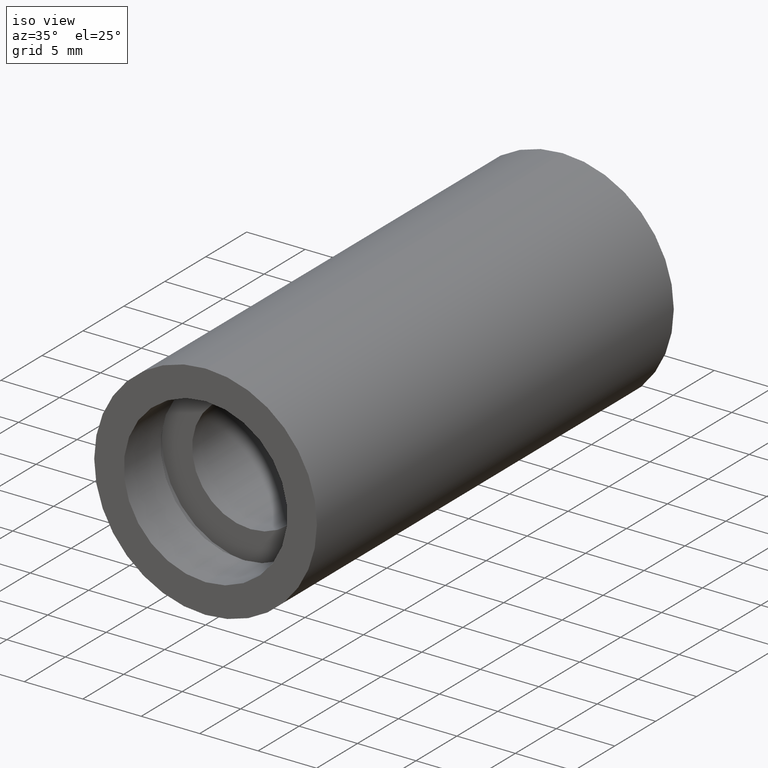
[diagram: clean part render]
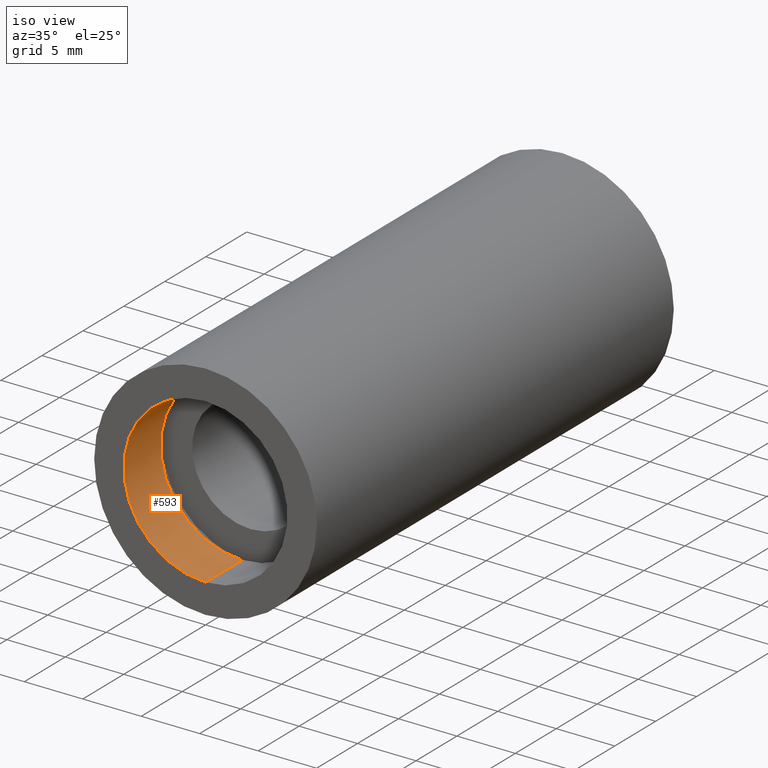
[diagram: same view with one face highlighted and labeled with its STEP entity id]
A machine part, iso view. The second image highlights one B-rep face of the part: STEP entity #593.
In plain terms, the highlighted cylindrical surface (partial cylindrical patch) has radius 7 mm, axis along (-0, 1, -0).
Its self-contained STEP definition (entity closure, byte-faithful):
#17 = CIRCLE ( 'NONE', #482, 7.000000000000020400 ) ;
#75 = CARTESIAN_POINT ( 'NONE',  ( 0.0000000000000000000, -2.775557561562891400E-014, 7.000000000000020400 ) ) ;
#85 = ORIENTED_EDGE ( 'NONE', *, *, #249, .F. ) ;
#186 = DIRECTION ( 'NONE',  ( -0.0000000000000000000, 1.000000000000000000, -0.0000000000000000000 ) ) ;
#188 = VERTEX_POINT ( 'NONE', #459 ) ;
#210 = CARTESIAN_POINT ( 'NONE',  ( 8.572527594031496900E-016, 4.499999999999976000, -7.000000000000020400 ) ) ;
#217 = CARTESIAN_POINT ( 'NONE',  ( 8.572527594031496900E-016, 161.3761669434274500, -7.000000000000020400 ) ) ;
#221 = CARTESIAN_POINT ( 'NONE',  ( 8.572527594031496900E-016, -2.775557561562891400E-014, -7.000000000000020400 ) ) ;
#225 = DIRECTION ( 'NONE',  ( -0.0000000000000000000, 1.000000000000000000, -0.0000000000000000000 ) ) ;
#228 = AXIS2_PLACEMENT_3D ( 'NONE', #245, #292, #337 ) ;
#245 = CARTESIAN_POINT ( 'NONE',  ( 0.0000000000000000000, 161.3761669434274500, 0.0000000000000000000 ) ) ;
#249 = EDGE_CURVE ( 'NONE', #451, #440, #17, .T. ) ;
#250 = CIRCLE ( 'NONE', #340, 7.000000000000020400 ) ;
#263 = EDGE_CURVE ( 'NONE', #451, #293, #462, .T. ) ;
#292 = DIRECTION ( 'NONE',  ( -0.0000000000000000000, 1.000000000000000000, -0.0000000000000000000 ) ) ;
#293 = VERTEX_POINT ( 'NONE', #210 ) ;
#323 = CYLINDRICAL_SURFACE ( 'NONE', #228, 7.000000000000020400 ) ;
#326 = CARTESIAN_POINT ( 'NONE',  ( 0.0000000000000000000, -2.775557561562891400E-014, 0.0000000000000000000 ) ) ;
#337 = DIRECTION ( 'NONE',  ( 0.0000000000000000000, 0.0000000000000000000, 1.000000000000000000 ) ) ;
#340 = AXIS2_PLACEMENT_3D ( 'NONE', #434, #186, #527 ) ;
#372 = EDGE_LOOP ( 'NONE', ( #85, #375, #397, #457 ) ) ;
#375 = ORIENTED_EDGE ( 'NONE', *, *, #263, .T. ) ;
#394 = VECTOR ( 'NONE', #225, 1000.000000000000000 ) ;
#397 = ORIENTED_EDGE ( 'NONE', *, *, #585, .T. ) ;
#422 = DIRECTION ( 'NONE',  ( 0.0000000000000000000, 0.0000000000000000000, 1.000000000000000000 ) ) ;
#431 = VECTOR ( 'NONE', #555, 1000.000000000000000 ) ;
#434 = CARTESIAN_POINT ( 'NONE',  ( 0.0000000000000000000, 4.499999999999976000, 0.0000000000000000000 ) ) ;
#436 = FACE_OUTER_BOUND ( 'NONE', #372, .T. ) ;
#440 = VERTEX_POINT ( 'NONE', #75 ) ;
#451 = VERTEX_POINT ( 'NONE', #221 ) ;
#457 = ORIENTED_EDGE ( 'NONE', *, *, #501, .F. ) ;
#459 = CARTESIAN_POINT ( 'NONE',  ( 0.0000000000000000000, 4.499999999999976000, 7.000000000000020400 ) ) ;
#462 = LINE ( 'NONE', #217, #431 ) ;
#465 = DIRECTION ( 'NONE',  ( -0.0000000000000000000, 1.000000000000000000, -0.0000000000000000000 ) ) ;
#477 = LINE ( 'NONE', #517, #394 ) ;
#482 = AXIS2_PLACEMENT_3D ( 'NONE', #326, #465, #422 ) ;
#501 = EDGE_CURVE ( 'NONE', #440, #188, #477, .T. ) ;
#517 = CARTESIAN_POINT ( 'NONE',  ( 0.0000000000000000000, 161.3761669434274500, 7.000000000000020400 ) ) ;
#527 = DIRECTION ( 'NONE',  ( 0.0000000000000000000, 0.0000000000000000000, 1.000000000000000000 ) ) ;
#555 = DIRECTION ( 'NONE',  ( -0.0000000000000000000, 1.000000000000000000, -0.0000000000000000000 ) ) ;
#585 = EDGE_CURVE ( 'NONE', #293, #188, #250, .T. ) ;
#593 = ADVANCED_FACE ( 'NONE', ( #436 ), #323, .F. ) ;